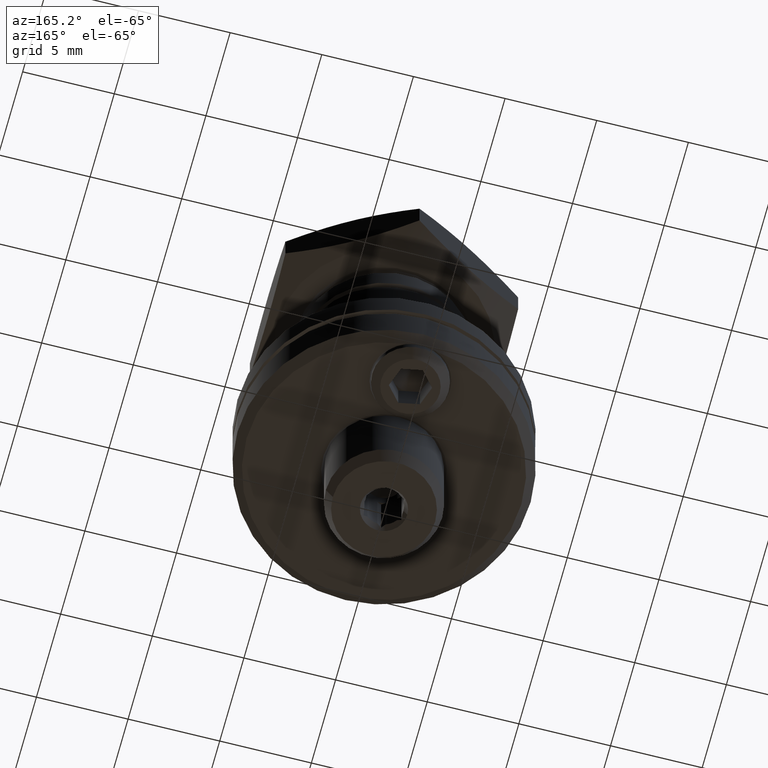
[diagram: clean part render]
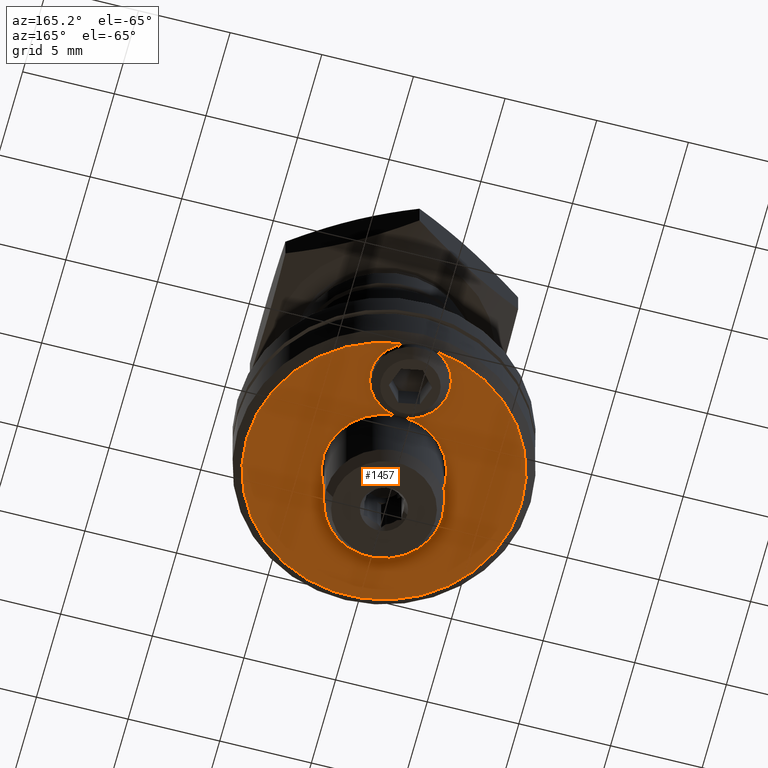
[diagram: same view with one face highlighted and labeled with its STEP entity id]
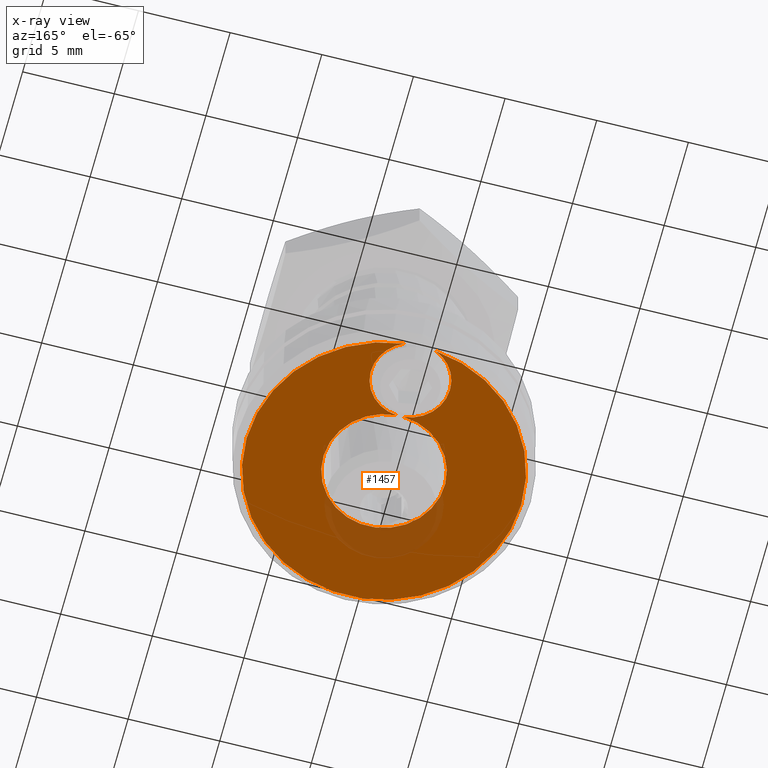
[diagram: x-ray of the same camera — body ghosted, the highlighted face saturated]
A machine part, auxiliary view. The second image highlights one B-rep face of the part: STEP entity #1457.
The next image is the same camera in x-ray: the body ghosted, the highlighted face saturated — about 8% of this face is hidden behind the body in this view.
In plain terms, the highlighted planar face has unit normal (0, 0, -1).
Its self-contained STEP definition (entity closure, byte-faithful):
#27 = CIRCLE ( 'NONE', #1586, 2.159000000006017217 ) ;
#29 = CARTESIAN_POINT ( 'NONE',  ( 0.000000000000000000, 5.460999999999999410, -26.49220000006380360 ) ) ;
#109 = FACE_OUTER_BOUND ( 'NONE', #1505, .T. ) ;
#115 = AXIS2_PLACEMENT_3D ( 'NONE', #2136, #1058, #1910 ) ;
#210 = VERTEX_POINT ( 'NONE', #228 ) ;
#216 = EDGE_CURVE ( 'NONE', #1381, #351, #2612, .T. ) ;
#228 = CARTESIAN_POINT ( 'NONE',  ( 0.8304962007076375219, 7.453876579378702516, -26.49220000006380360 ) ) ;
#245 = DIRECTION ( 'NONE',  ( -1.000000000000000000, 0.000000000000000000, 0.000000000000000000 ) ) ;
#351 = VERTEX_POINT ( 'NONE', #2504 ) ;
#381 = DIRECTION ( 'NONE',  ( -1.000000000000000000, 0.000000000000000000, 0.000000000000000000 ) ) ;
#549 = ORIENTED_EDGE ( 'NONE', *, *, #1194, .T. ) ;
#599 = AXIS2_PLACEMENT_3D ( 'NONE', #1927, #2590, #1137 ) ;
#616 = DIRECTION ( 'NONE',  ( -0.000000000000000000, -0.000000000000000000, 1.000000000000000000 ) ) ;
#853 = CIRCLE ( 'NONE', #599, 3.314699999975800893 ) ;
#857 = DIRECTION ( 'NONE',  ( -0.000000000000000000, -0.000000000000000000, 1.000000000000000000 ) ) ;
#941 = PLANE ( 'NONE',  #2449 ) ;
#1058 = DIRECTION ( 'NONE',  ( 0.000000000000000000, 0.000000000000000000, -1.000000000000000000 ) ) ;
#1137 = DIRECTION ( 'NONE',  ( -1.000000000000000000, 0.000000000000000000, 0.000000000000000000 ) ) ;
#1194 = EDGE_CURVE ( 'NONE', #210, #1381, #1236, .T. ) ;
#1200 = DIRECTION ( 'NONE',  ( 0.000000000000000000, 0.000000000000000000, -1.000000000000000000 ) ) ;
#1226 = DIRECTION ( 'NONE',  ( -1.000000000000000000, 0.000000000000000000, -0.000000000000000000 ) ) ;
#1236 = CIRCLE ( 'NONE', #115, 7.500000000000011546 ) ;
#1381 = VERTEX_POINT ( 'NONE', #1768 ) ;
#1457 = ADVANCED_FACE ( 'NONE', ( #109 ), #941, .T. ) ;
#1505 = EDGE_LOOP ( 'NONE', ( #2546, #549, #1793, #1995 ) ) ;
#1578 = CARTESIAN_POINT ( 'NONE',  ( 0.1821065455032013780, 3.309693837197765998, -26.49220000006380360 ) ) ;
#1586 = AXIS2_PLACEMENT_3D ( 'NONE', #2653, #616, #381 ) ;
#1768 = CARTESIAN_POINT ( 'NONE',  ( -0.8304962007076375219, 7.453876579378702516, -26.49220000006380360 ) ) ;
#1793 = ORIENTED_EDGE ( 'NONE', *, *, #216, .T. ) ;
#1910 = DIRECTION ( 'NONE',  ( -1.000000000000000000, 0.000000000000000000, 0.000000000000000000 ) ) ;
#1927 = CARTESIAN_POINT ( 'NONE',  ( 0.000000000000000000, 0.000000000000000000, -26.49220000006380360 ) ) ;
#1995 = ORIENTED_EDGE ( 'NONE', *, *, #2561, .T. ) ;
#2136 = CARTESIAN_POINT ( 'NONE',  ( 0.000000000000000000, 0.000000000000000000, -26.49219999999999686 ) ) ;
#2173 = VERTEX_POINT ( 'NONE', #1578 ) ;
#2248 = CARTESIAN_POINT ( 'NONE',  ( 0.000000000000000000, 7.937500000000000000, -26.49219999999999686 ) ) ;
#2312 = EDGE_CURVE ( 'NONE', #2173, #210, #27, .T. ) ;
#2449 = AXIS2_PLACEMENT_3D ( 'NONE', #2248, #1200, #1226 ) ;
#2504 = CARTESIAN_POINT ( 'NONE',  ( -0.1821065455032009617, 3.309693837197765998, -26.49220000006380360 ) ) ;
#2546 = ORIENTED_EDGE ( 'NONE', *, *, #2312, .T. ) ;
#2561 = EDGE_CURVE ( 'NONE', #351, #2173, #853, .T. ) ;
#2567 = AXIS2_PLACEMENT_3D ( 'NONE', #29, #857, #245 ) ;
#2590 = DIRECTION ( 'NONE',  ( -0.000000000000000000, -0.000000000000000000, 1.000000000000000000 ) ) ;
#2612 = CIRCLE ( 'NONE', #2567, 2.159000000006017217 ) ;
#2653 = CARTESIAN_POINT ( 'NONE',  ( 0.000000000000000000, 5.460999999999999410, -26.49220000006380360 ) ) ;